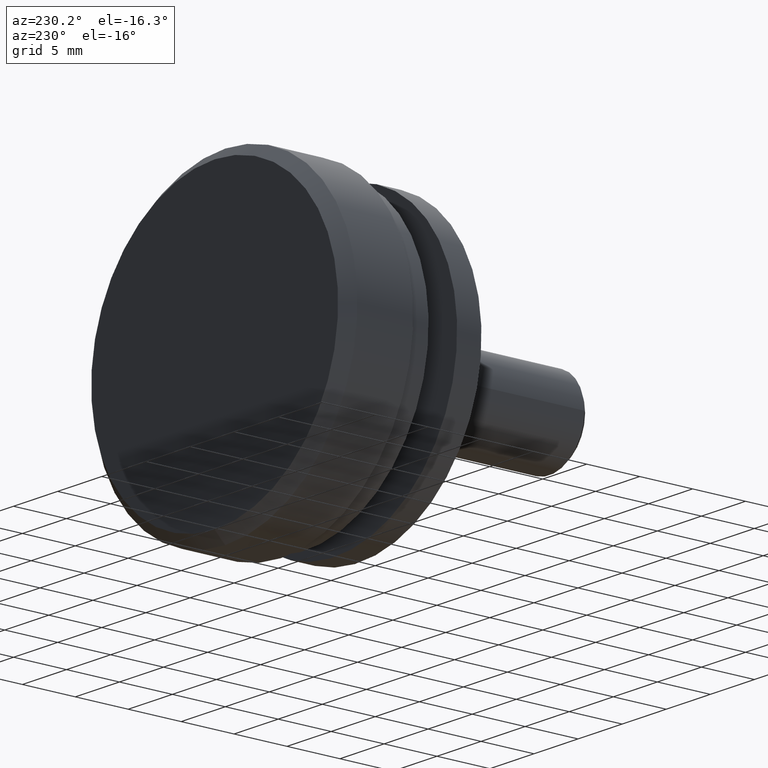
[diagram: clean part render]
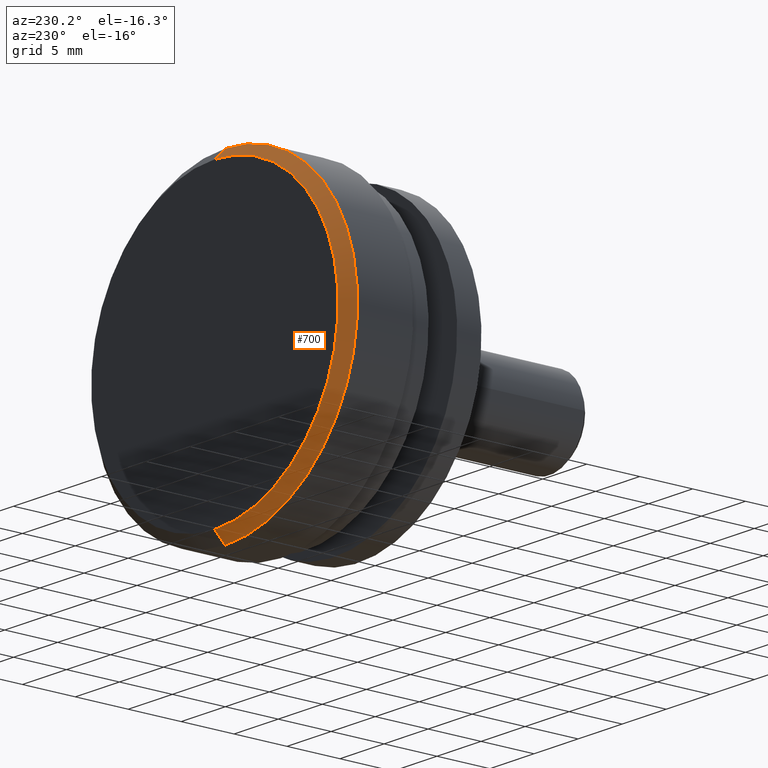
[diagram: same view with one face highlighted and labeled with its STEP entity id]
A machine part, auxiliary view. The second image highlights one B-rep face of the part: STEP entity #700.
In plain terms, the highlighted conical surface has half-angle 45 deg.
Its self-contained STEP definition (entity closure, byte-faithful):
#52 = CARTESIAN_POINT ( 'NONE',  ( 1.836970198721029600E-015, 9.999999999999998200, 15.00000000000000000 ) ) ;
#700 = ADVANCED_FACE ( 'NONE', ( #12013 ), #5489, .T. ) ;
#1899 = AXIS2_PLACEMENT_3D ( 'NONE', #13277, #11081, #4504 ) ;
#2018 = VERTEX_POINT ( 'NONE', #3360 ) ;
#2357 = VERTEX_POINT ( 'NONE', #52 ) ;
#2379 = CARTESIAN_POINT ( 'NONE',  ( 0.0000000000000000000, 9.999999999999998200, 0.0000000000000000000 ) ) ;
#2568 = DIRECTION ( 'NONE',  ( 0.0000000000000000000, 0.0000000000000000000, -1.000000000000000000 ) ) ;
#2600 = EDGE_LOOP ( 'NONE', ( #4457, #13389, #4891, #4104 ) ) ;
#3360 = CARTESIAN_POINT ( 'NONE',  ( 0.0000000000000000000, 9.999999999999998200, -15.00000000000000000 ) ) ;
#3782 = CARTESIAN_POINT ( 'NONE',  ( 1.775737858763662000E-015, 11.00000000000000000, 13.99999999999999800 ) ) ;
#4104 = ORIENTED_EDGE ( 'NONE', *, *, #8504, .F. ) ;
#4457 = ORIENTED_EDGE ( 'NONE', *, *, #5884, .F. ) ;
#4504 = DIRECTION ( 'NONE',  ( 0.0000000000000000000, 0.0000000000000000000, -1.000000000000000000 ) ) ;
#4542 = DIRECTION ( 'NONE',  ( -0.0000000000000000000, -1.000000000000000000, -0.0000000000000000000 ) ) ;
#4670 = VECTOR ( 'NONE', #11739, 1000.000000000000000 ) ;
#4891 = ORIENTED_EDGE ( 'NONE', *, *, #14024, .T. ) ;
#5489 = CONICAL_SURFACE ( 'NONE', #6871, 15.00000000000000000, 0.7853981633974482800 ) ;
#5570 = EDGE_CURVE ( 'NONE', #10388, #12435, #10165, .T. ) ;
#5884 = EDGE_CURVE ( 'NONE', #10388, #2357, #12045, .T. ) ;
#6669 = CIRCLE ( 'NONE', #14010, 15.00000000000000000 ) ;
#6871 = AXIS2_PLACEMENT_3D ( 'NONE', #2379, #4542, #2568 ) ;
#7070 = VECTOR ( 'NONE', #8309, 1000.000000000000000 ) ;
#7567 = LINE ( 'NONE', #9430, #4670 ) ;
#8309 = DIRECTION ( 'NONE',  ( 8.659560562354931600E-017, -0.7071067811865475700, 0.7071067811865474600 ) ) ;
#8504 = EDGE_CURVE ( 'NONE', #2357, #2018, #6669, .T. ) ;
#9322 = CARTESIAN_POINT ( 'NONE',  ( 1.836970198721029600E-015, 9.999999999999998200, 15.00000000000000000 ) ) ;
#9379 = CARTESIAN_POINT ( 'NONE',  ( 0.0000000000000000000, 9.999999999999998200, 0.0000000000000000000 ) ) ;
#9430 = CARTESIAN_POINT ( 'NONE',  ( 0.0000000000000000000, 9.999999999999998200, -15.00000000000000000 ) ) ;
#10165 = CIRCLE ( 'NONE', #1899, 13.99999999999999800 ) ;
#10388 = VERTEX_POINT ( 'NONE', #3782 ) ;
#10478 = DIRECTION ( 'NONE',  ( -0.0000000000000000000, -1.000000000000000000, -0.0000000000000000000 ) ) ;
#11081 = DIRECTION ( 'NONE',  ( -0.0000000000000000000, -1.000000000000000000, -0.0000000000000000000 ) ) ;
#11588 = DIRECTION ( 'NONE',  ( 0.0000000000000000000, 0.0000000000000000000, -1.000000000000000000 ) ) ;
#11739 = DIRECTION ( 'NONE',  ( 0.0000000000000000000, -0.7071067811865475700, -0.7071067811865474600 ) ) ;
#12013 = FACE_OUTER_BOUND ( 'NONE', #2600, .T. ) ;
#12045 = LINE ( 'NONE', #9322, #7070 ) ;
#12435 = VERTEX_POINT ( 'NONE', #13068 ) ;
#13068 = CARTESIAN_POINT ( 'NONE',  ( 0.0000000000000000000, 11.00000000000000000, -13.99999999999999800 ) ) ;
#13277 = CARTESIAN_POINT ( 'NONE',  ( 0.0000000000000000000, 11.00000000000000000, 0.0000000000000000000 ) ) ;
#13389 = ORIENTED_EDGE ( 'NONE', *, *, #5570, .T. ) ;
#14010 = AXIS2_PLACEMENT_3D ( 'NONE', #9379, #10478, #11588 ) ;
#14024 = EDGE_CURVE ( 'NONE', #12435, #2018, #7567, .T. ) ;